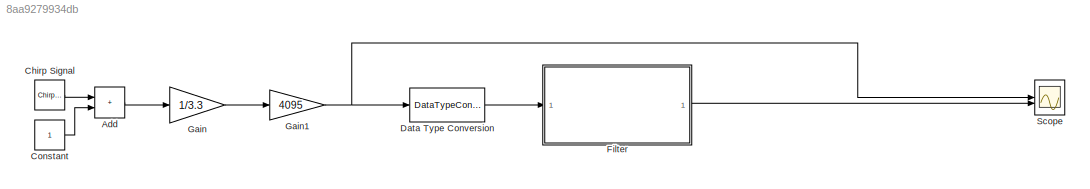
MODEL slx_8aa9279934db
KIND model
CONFIG AbsTol = auto
CONFIG EnableMultiTasking = off
CONFIG FixedStep = 0.001
CONFIG MaxStep = auto
CONFIG MinStep = auto
CONFIG RelTol = 1e-3
CONFIG SampleTimeConstraint = Unconstrained
CONFIG SolverName = FixedStepAuto
CONFIG StartTime = 0.0
CONFIG StopTime = 10.0
BLOCK [Sum] Add
  IconShape = rectangular
BLOCK [Reference] Chirp Signal  REF=simulink/Sources/Chirp Signal
  SourceBlock = simulink/Sources/Chirp Signal
  SourceType = chirp
BLOCK [Constant] Constant
BLOCK [DataTypeConversion] Data Type Conversion
  OutDataTypeStr = fixdt('uint16', 'DataTypeOverride', 'Off')
  RndMeth = Floor
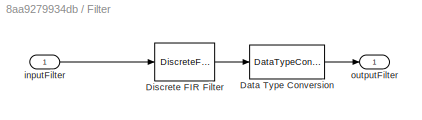
BLOCK [SubSystem] Filter
BLOCK [DataTypeConversion] Filter/Data Type Conversion
  OutDataTypeStr = fixdt(0,12,0, 'DataTypeOverride', 'Off')
  RndMeth = Floor
BLOCK [DiscreteFir] Filter/Discrete FIR Filter
  AccumDataTypeStr = fixdt(1,32,10, 'DataTypeOverride', 'Off')
  CoefDataTypeStr = fixdt(1,32,30, 'DataTypeOverride', 'Off')
  Coefficients = [-0.022941089669897156 -0.041759395677959277 -0.047725023631953453 -0.034411634504845724 0.000000000000000009 0.051617451757268590 0.111358388474558048 0.167037582711837107 0.206469807029074304 0.220707827023835096 0.206469807029074304 0.167037582711837107 0.111358388474558048 0.051617451757268590 0.000000000000000009 -0.034411634504845724 -0.047725023631953453 -0.041759395677959277 -0.02294108966...<+8ch>
  InputPortMap = u0
  OutDataTypeStr = fixdt('int32', 'DataTypeOverride', 'Off')
  OutputPortMap = o0
  ProductDataTypeStr = fixdt(1,32,10, 'DataTypeOverride', 'Off')
  SampleTime = 0.001
BLOCK [Inport] Filter/inputFilter
  OutDataTypeStr = fixdt('uint16', 'DataTypeOverride', 'Off')
BLOCK [Outport] Filter/outputFilter
BLOCK [Gain] Gain
  Gain = 1/3.3
BLOCK [Gain] Gain1
  Gain = 4095
BLOCK [Scope] Scope
  Floating = off
  NumInputPorts = 2
  ScopeSpecificationString = Simulink.scopes.TimeScopeBlockCfg('CurrentConfiguration', extmgr.ConfigurationSet(extmgr.Configuration('Core','General UI',true),extmgr.Configuration('Core','Source UI',true),extmgr.Configuration('Sources','WiredSimulink',true),extmgr.Configuration('Visuals','Time Domain',true,'SerializedDisplays',{struct('MinYLimReal','-346.5','MaxYLimReal','3118.5','YLabelReal','','MinYLimMag',' 0.00000','MaxYLi...<+1428ch>
LINE Add:1 -> Gain:1
LINE Chirp Signal:1 -> Add:1
LINE Constant:1 -> Add:2
LINE Data Type Conversion:1 -> Filter:1
LINE Filter/Data Type Conversion:1 -> Filter/outputFilter:1
LINE Filter/Discrete FIR Filter:1 -> Filter/Data Type Conversion:1
LINE Filter/inputFilter:1 -> Filter/Discrete FIR Filter:1
LINE Filter:1 -> Scope:2
NET Gain1:1 -> Data Type Conversion:1, Scope:1
LINE Gain:1 -> Gain1:1
note: NET lines group one-source signal fan-out (src -> all destinations, sorted); 1:1 wires keep LINE
